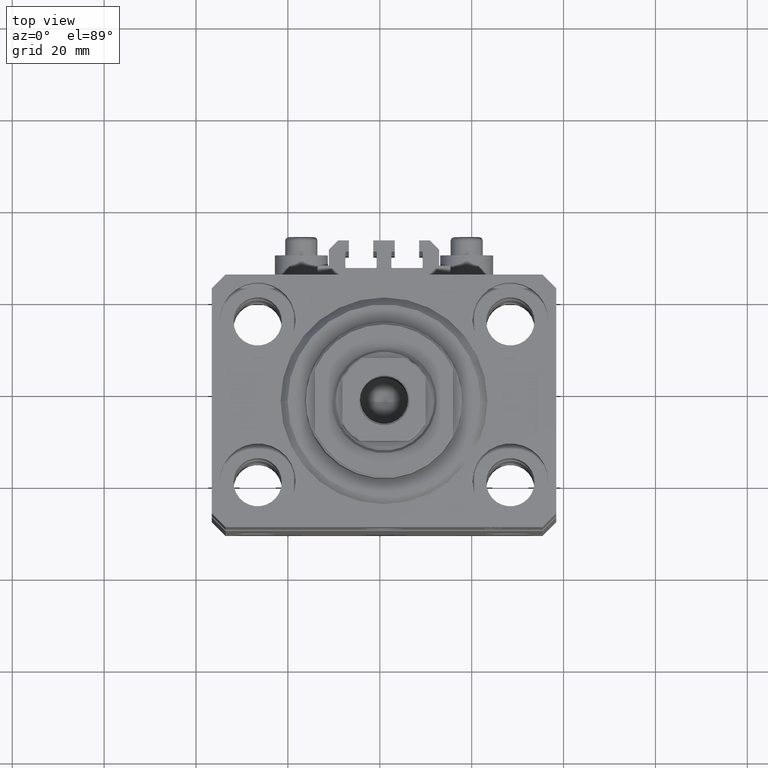
[diagram: clean part render]
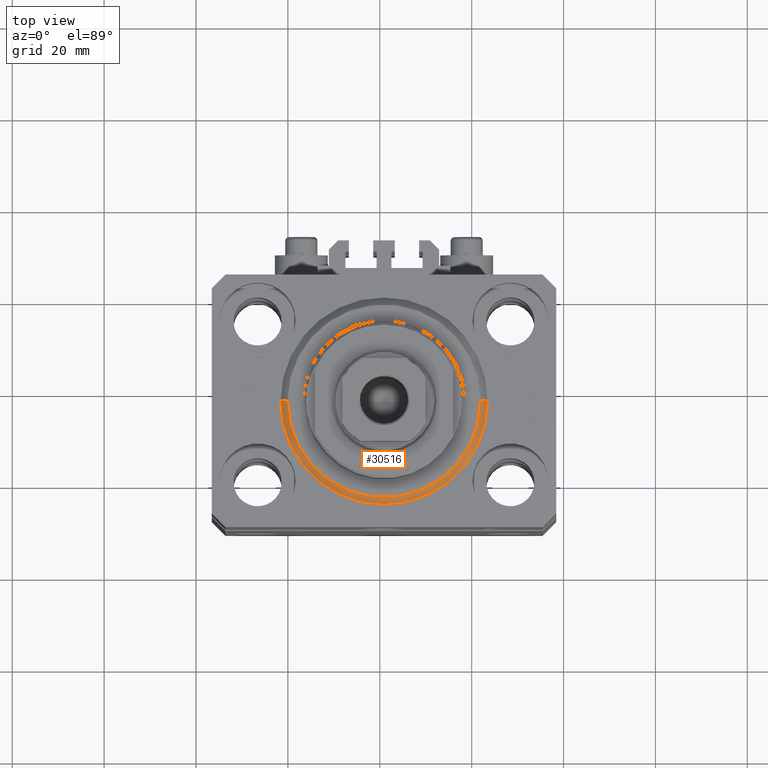
[diagram: same view with one face highlighted and labeled with its STEP entity id]
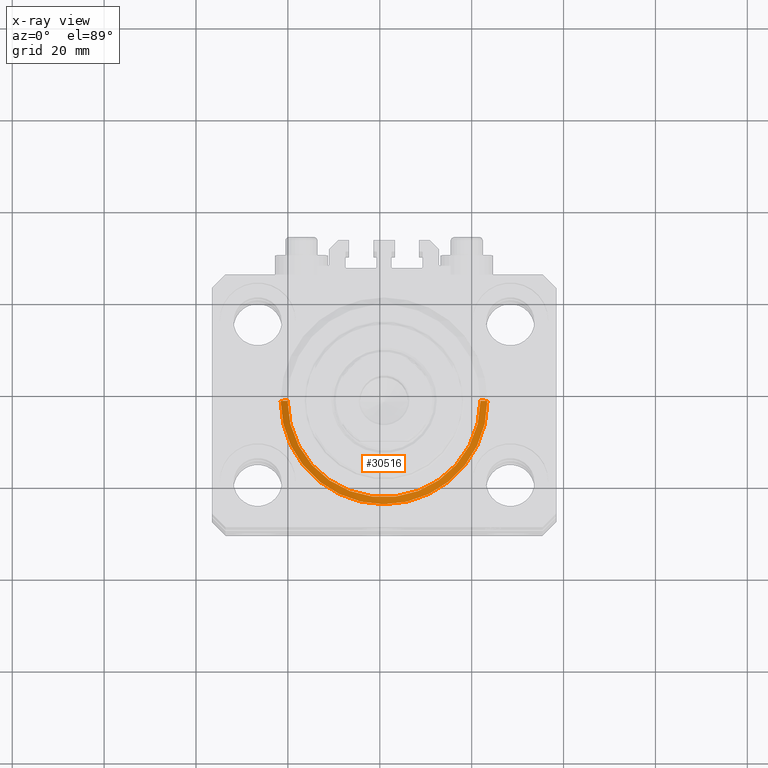
[diagram: x-ray of the same camera — body ghosted, the highlighted face saturated]
A machine part, top view. The second image highlights one B-rep face of the part: STEP entity #30516.
The next image is the same camera in x-ray: the body ghosted, the highlighted face saturated — about 0% of this face is hidden behind the body in this view.
In plain terms, the highlighted conical surface has half-angle 45 deg.
Its self-contained STEP definition (entity closure, byte-faithful):
#60 = AXIS2_PLACEMENT_3D ( 'NONE', #7205, #3126, #4070 ) ;
#3126 = DIRECTION ( 'NONE',  ( -0.000000000000000000, -0.000000000000000000, -1.000000000000000000 ) ) ;
#3905 = CARTESIAN_POINT ( 'NONE',  ( -22.50000000000000355, 2.755455298081545172E-15, 1.500000000000001332 ) ) ;
#4070 = DIRECTION ( 'NONE',  ( 1.000000000000000000, 0.000000000000000000, 0.000000000000000000 ) ) ;
#4923 = DIRECTION ( 'NONE',  ( -0.000000000000000000, -0.000000000000000000, 1.000000000000000000 ) ) ;
#7205 = CARTESIAN_POINT ( 'NONE',  ( 0.000000000000000000, 0.000000000000000000, 0.000000000000000000 ) ) ;
#7923 = EDGE_CURVE ( 'NONE', #24913, #18692, #14865, .T. ) ;
#8048 = DIRECTION ( 'NONE',  ( 1.000000000000000000, 0.000000000000000000, 0.000000000000000000 ) ) ;
#8476 = EDGE_CURVE ( 'NONE', #35612, #10131, #11561, .T. ) ;
#8881 = EDGE_LOOP ( 'NONE', ( #32212, #31367, #23776, #11059 ) ) ;
#10131 = VERTEX_POINT ( 'NONE', #28567 ) ;
#11059 = ORIENTED_EDGE ( 'NONE', *, *, #20520, .F. ) ;
#11561 = LINE ( 'NONE', #3905, #33327 ) ;
#13245 = AXIS2_PLACEMENT_3D ( 'NONE', #15455, #40826, #18351 ) ;
#14623 = DIRECTION ( 'NONE',  ( 0.7071067811865500152, 0.000000000000000000, 0.7071067811865451302 ) ) ;
#14865 = LINE ( 'NONE', #32824, #14945 ) ;
#14945 = VECTOR ( 'NONE', #14623, 1000.000000000000114 ) ;
#15455 = CARTESIAN_POINT ( 'NONE',  ( 0.000000000000000000, 0.000000000000000000, 1.500000000000001332 ) ) ;
#16753 = AXIS2_PLACEMENT_3D ( 'NONE', #37722, #4923, #8048 ) ;
#18351 = DIRECTION ( 'NONE',  ( 1.000000000000000000, 0.000000000000000000, 0.000000000000000000 ) ) ;
#18692 = VERTEX_POINT ( 'NONE', #32348 ) ;
#19869 = CARTESIAN_POINT ( 'NONE',  ( 20.99999999999998934, 0.000000000000000000, 0.000000000000000000 ) ) ;
#20520 = EDGE_CURVE ( 'NONE', #10131, #18692, #32058, .T. ) ;
#23776 = ORIENTED_EDGE ( 'NONE', *, *, #7923, .T. ) ;
#24680 = EDGE_CURVE ( 'NONE', #24913, #35612, #45935, .T. ) ;
#24913 = VERTEX_POINT ( 'NONE', #19869 ) ;
#28567 = CARTESIAN_POINT ( 'NONE',  ( -22.50000000000000355, 0.000000000000000000, 1.500000000000001332 ) ) ;
#30516 = ADVANCED_FACE ( 'NONE', ( #37242 ), #46872, .T. ) ;
#31367 = ORIENTED_EDGE ( 'NONE', *, *, #24680, .F. ) ;
#32058 = CIRCLE ( 'NONE', #16753, 22.50000000000000355 ) ;
#32212 = ORIENTED_EDGE ( 'NONE', *, *, #8476, .F. ) ;
#32348 = CARTESIAN_POINT ( 'NONE',  ( 22.50000000000000355, 2.755455298081545172E-15, 1.500000000000001332 ) ) ;
#32824 = CARTESIAN_POINT ( 'NONE',  ( 22.50000000000000355, 0.000000000000000000, 1.500000000000001332 ) ) ;
#33327 = VECTOR ( 'NONE', #33357, 1000.000000000000114 ) ;
#33357 = DIRECTION ( 'NONE',  ( -0.7071067811865500152, 8.659560562354963673E-17, 0.7071067811865451302 ) ) ;
#33434 = CARTESIAN_POINT ( 'NONE',  ( -20.99999999999998934, 2.663606788145492628E-15, 0.000000000000000000 ) ) ;
#35612 = VERTEX_POINT ( 'NONE', #33434 ) ;
#37242 = FACE_OUTER_BOUND ( 'NONE', #8881, .T. ) ;
#37722 = CARTESIAN_POINT ( 'NONE',  ( 0.000000000000000000, 0.000000000000000000, 1.500000000000001332 ) ) ;
#40826 = DIRECTION ( 'NONE',  ( -0.000000000000000000, -0.000000000000000000, 1.000000000000000000 ) ) ;
#45935 = CIRCLE ( 'NONE', #60, 20.99999999999998934 ) ;
#46872 = CONICAL_SURFACE ( 'NONE', #13245, 22.50000000000000355, 0.7853981633974517207 ) ;